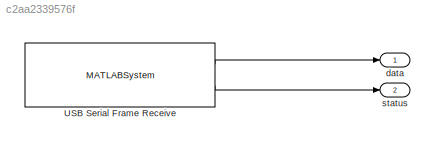
MODEL slx_c2aa2339576f
KIND model
CONFIG AbsTol = auto
CONFIG FixedStep = auto
CONFIG MaxStep = auto
CONFIG MinStep = auto
CONFIG RelTol = 1e-3
CONFIG SampleTimeConstraint = Unconstrained
CONFIG Solver = FixedStepAuto
CONFIG SolverMode = Auto
CONFIG SolverName = FixedStepAuto
CONFIG StartTime = 0.0
CONFIG StopTime = 10.0
BLOCK [MATLABSystem] USB Serial Frame Receive
  EOFbyte = 255
  MaskDisplay = disp('frdmUSBserialFrameRxClass');\nport_label('output',1,'buffer');\nport_label('output',2,'status');
  MaskType = frdmUSBserialFrameRxClass
  Ports = [0, 2]
  SOFbyte = 254
  SimulateUsing = Code generation
  System = frdmUSBserialFrameRxClass
  msgLen = 10
BLOCK [Outport] data
  IconDisplay = Port number
BLOCK [Outport] status
  IconDisplay = Port number
  Port = 2
LINE USB Serial Frame Receive:1 -> data:1
LINE USB Serial Frame Receive:2 -> status:1
